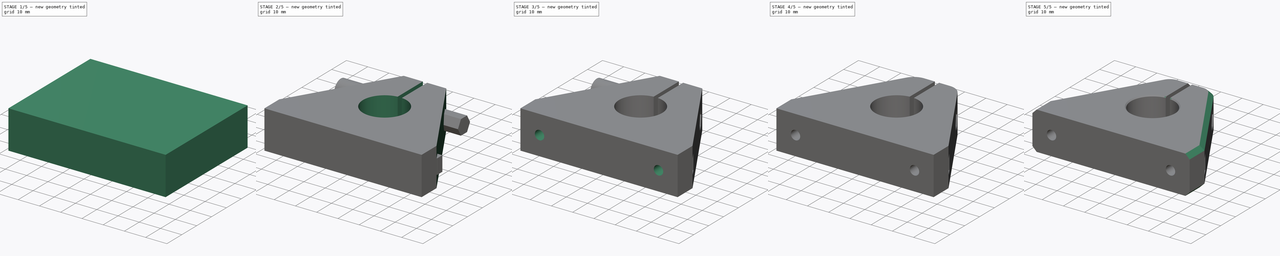
[diagram: build sequence overview — one tinted view per stage of 5, left to right]
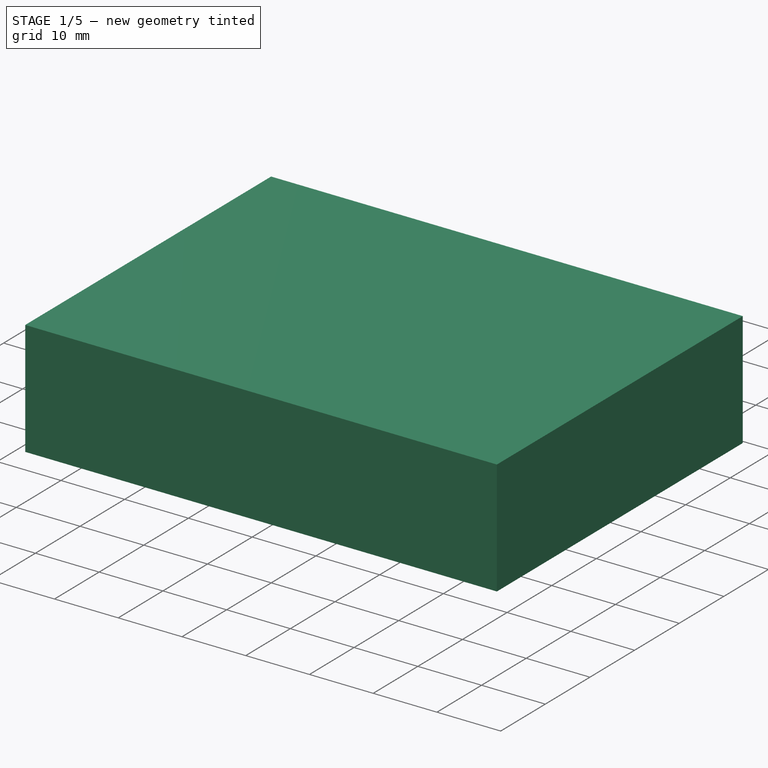
[diagram: stage 1 of 5 — iso view after this stage's code; geometry added in this stage tinted green]
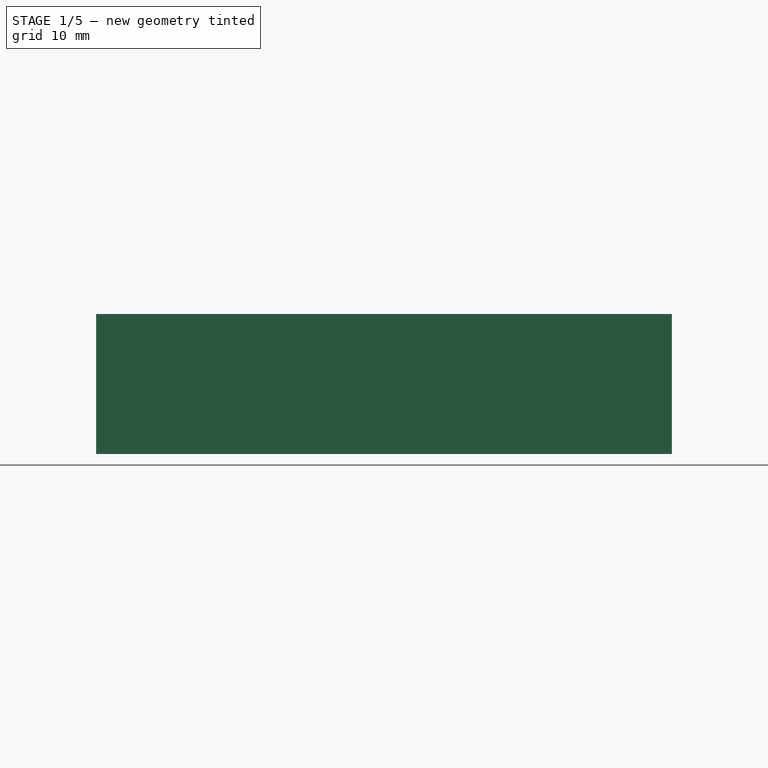
[diagram: stage 1 of 5 — front view after this stage's code; geometry added in this stage tinted green]
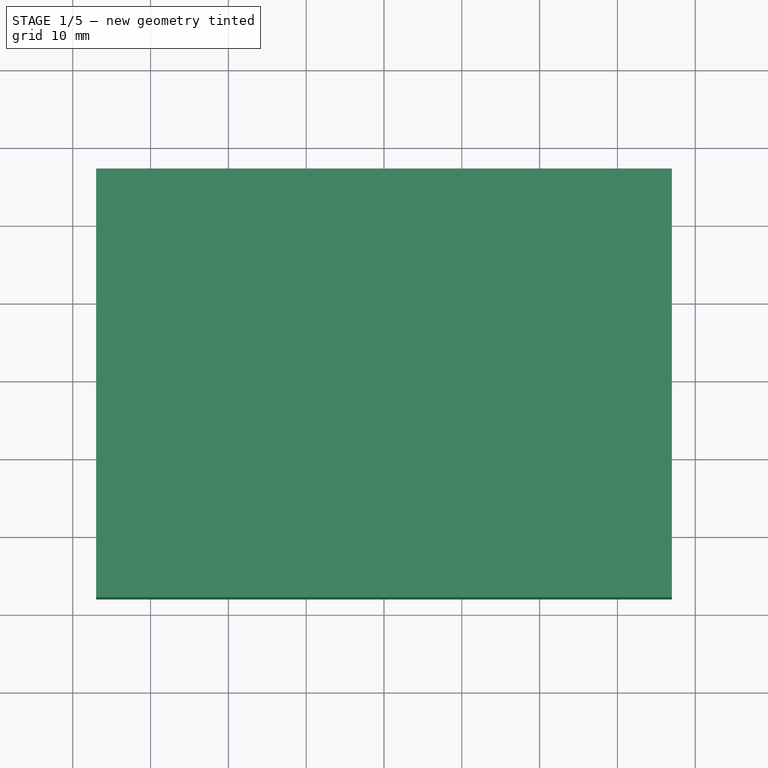
[diagram: stage 1 of 5 — top view after this stage's code; geometry added in this stage tinted green]
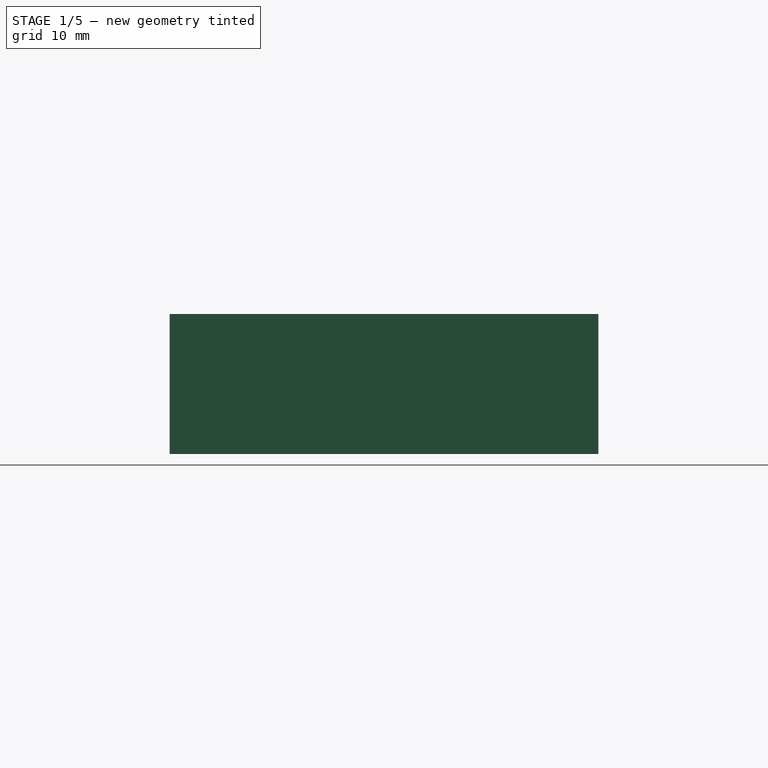
[diagram: stage 1 of 5 — right view after this stage's code; geometry added in this stage tinted green]
FCSTD DOCUMENT  (FreeCAD 0.16R6704 (Git))
Label: Support 
License: All rights reserved
LicenseURL: http://fr.wikipedia.org/wiki/<copyright redacted>
objects: Sketcher::SketchObject×9, PartDesign::Pocket×5, PartDesign::Pad×4, PartDesign::Chamfer×4, Part::Cut×3, PartDesign::Fillet×2
note: 36 computed .brp shape members not serialized (recipe doc carries the construction recipe); baked Part::Feature solids carry a one-line shape summary decoded from their .brp

FEATURE [Sketcher::SketchObject] Sketch
  sketch-geometry (6):
    g0: LineSegment StartX=-37 StartY=-28 StartZ=0 EndX=37 EndY=-28 EndZ=0
    g1: LineSegment StartX=37 StartY=-28 StartZ=0 EndX=37 EndY=27.1 EndZ=0
    g2: LineSegment StartX=37 StartY=27.1 StartZ=0 EndX=-37 EndY=27.1 EndZ=0
    g3: LineSegment StartX=-37 StartY=27.1 StartZ=0 EndX=-37 EndY=-28 EndZ=0
    g4: Circle [constr] CenterX=0 CenterY=0 CenterZ=0 NormalX=0 NormalY=0 NormalZ=1 Radius=10.1
    g5: LineSegment [constr] StartX=0 StartY=10.1 StartZ=0 EndX=0 EndY=27.1 EndZ=0
  constraints (18):
    c: Coincident(g0,g1)
    c: Coincident(g1,g2)
    c: Coincident(g2,g3)
    c: Coincident(g3,g0)
    c: Horizontal(g0)
    c: Horizontal(g2)
    c: Vertical(g1)
    c: Vertical(g3)
    c: Symmetric(g1,g2,g-2)
    c: DistanceX(g1,g2) = -74
    c: Coincident(g4,g-1)
    c: Radius(g4) = 10.1
    c: PointOnObject(g5,g4)
    c: Vertical(g5)
    c: DistanceY(g5) = 17
    c: PointOnObject(g5,g2)
    c: PointOnObject(g5,g-2)
    c: DistanceY(g-1,g0) = -28
FEATURE [PartDesign::Pad] Pad
  Length = 18
  Length2 = 100
  Sketch = -> Sketch
  Type = 0
FEATURE [Sketcher::SketchObject] Sketch005
  Placement = pos=(0,-17.55,0) rot=(1,0,0;1.5708rad)
  sketch-geometry (21):
    g0: LineSegment [constr] StartX=-28 StartY=9 StartZ=0 EndX=28 EndY=9 EndZ=0
    g1: LineSegment StartX=-23.9297 StartY=9 StartZ=0 EndX=-25.9648 EndY=12.525 EndZ=0
    g2: LineSegment StartX=-25.9648 StartY=12.525 StartZ=0 EndX=-30.0352 EndY=12.525 EndZ=0
    g3: LineSegment [constr] StartX=-30.0352 StartY=12.525 StartZ=0 EndX=-32.0703 EndY=9 EndZ=0
    g4: LineSegment [constr] StartX=-32.0703 StartY=9 StartZ=0 EndX=-30.0352 EndY=5.475 EndZ=0
    g5: LineSegment StartX=-30.0352 StartY=5.475 StartZ=0 EndX=-25.9648 EndY=5.475 EndZ=0
    g6: LineSegment StartX=-25.9648 StartY=5.475 StartZ=0 EndX=-23.9297 EndY=9 EndZ=0
    g7: Circle [constr] CenterX=-28 CenterY=9 CenterZ=0 NormalX=0 NormalY=0 NormalZ=1 Radius=4.07032
    g8: LineSegment StartX=23.9297 StartY=9 StartZ=0 EndX=25.9648 EndY=5.475 EndZ=0
    g9: LineSegment StartX=25.9648 StartY=5.475 StartZ=0 EndX=30.0352 EndY=5.475 EndZ=0
    g10: LineSegment [constr] StartX=30.0352 StartY=5.475 StartZ=0 EndX=32.0703 EndY=9 EndZ=0
    g11: LineSegment [constr] StartX=32.0703 StartY=9 StartZ=0 EndX=30.0352 EndY=12.525 EndZ=0
    g12: LineSegment StartX=30.0352 StartY=12.525 StartZ=0 EndX=25.9648 EndY=12.525 EndZ=0
    g13: LineSegment StartX=25.9648 StartY=12.525 StartZ=0 EndX=23.9297 EndY=9 EndZ=0
    g14: Circle [constr] CenterX=28 CenterY=9 CenterZ=0 NormalX=0 NormalY=0 NormalZ=1 Radius=4.07032
    g15: LineSegment StartX=-30.0352 StartY=12.525 StartZ=0 EndX=-37 EndY=12.525 EndZ=0
    g16: LineSegment StartX=-37 StartY=12.525 StartZ=0 EndX=-37 EndY=5.475 EndZ=0
    g17: LineSegment StartX=-37 StartY=5.475 StartZ=0 EndX=-30.0352 EndY=5.475 EndZ=0
    g18: LineSegment StartX=30.0352 StartY=12.525 StartZ=0 EndX=37 EndY=12.525 EndZ=0
    g19: LineSegment StartX=37 StartY=12.525 StartZ=0 EndX=37 EndY=5.475 EndZ=0
    g20: LineSegment StartX=37 StartY=5.475 StartZ=0 EndX=30.0352 EndY=5.475 EndZ=0
  constraints (51):
    c: Symmetric(g0,g0,g-2)
    c: DistanceX(g0) = 56
    c: DistanceY(g-1,g0) = 9
    c: Coincident(g1,g2)
    c: Coincident(g2,g3)
    c: Coincident(g3,g4)
    c: Coincident(g4,g5)
    c: Coincident(g5,g6)
    c: Coincident(g6,g1)
    c: Equal(g1, g2-g6) x5
    c: PointOnObject(g1,g7)
    c: PointOnObject(g2,g7)
    c: PointOnObject(g3,g7)
    c: PointOnObject(g4,g7)
    c: PointOnObject(g5,g7)
    c: PointOnObject(g6,g7)
    c: Horizontal(g5)
    c: Coincident(g8,g9)
    c: Coincident(g9,g10)
    c: Coincident(g10,g11)
    c: Coincident(g11,g12)
    c: Coincident(g12,g13)
    c: Coincident(g13,g8)
    c: Equal(g8, g9-g13) x5
    c: PointOnObject(g8,g14)
    c: PointOnObject(g9,g14)
    c: PointOnObject(g10,g14)
    c: PointOnObject(g11,g14)
    c: PointOnObject(g12,g14)
    c: PointOnObject(g13,g14)
    c: Horizontal(g12)
    c: Coincident(g0,g7)
    c: Coincident(g0,g14)
    c: Equal(g7,g14)
    c: Distance(g5,g1) = 7.05
    c: Horizontal(g15)
    c: Coincident(g15,g16)
    c: Vertical(g16)
    c: Coincident(g16,g17)
    c: Horizontal(g17)
    c: Coincident(g15,g2)
    c: Coincident(g17,g4)
    c: Coincident(g18,g19)
    c: Vertical(g19)
    c: Coincident(g19,g20)
    c: Coincident(g18,g11)
    c: Coincident(g20,g9)
    c: Parallel(g18,g20)
    c: Parallel(g20,g-1)
    c: Symmetric(g16,g19,g-2)
    c: DistanceX(g16,g19) = 74
FEATURE [PartDesign::Pad] Pad001
  Length = 3.5
  Length2 = 100
  Placement = pos=(0,-17.55,0) rot=(1,0,0;1.5708rad)
  Reversed = true
  Sketch = -> Sketch005
  Type = 0
FEATURE [Sketcher::SketchObject] Sketch007
  Placement = pos=(4,0,0) rot=(0.57735,0.57735,0.57735;2.0944rad)
  sketch-geometry (7):
    g0: LineSegment StartX=21.0852 StartY=12.525 StartZ=0 EndX=17.0148 EndY=12.525 EndZ=0
    g1: LineSegment StartX=17.0148 StartY=12.525 StartZ=0 EndX=14.9797 EndY=9 EndZ=0
    g2: LineSegment StartX=14.9797 StartY=9 StartZ=0 EndX=17.0148 EndY=5.475 EndZ=0
    g3: LineSegment StartX=17.0148 StartY=5.475 StartZ=0 EndX=21.0852 EndY=5.475 EndZ=0
    g4: LineSegment StartX=21.0852 StartY=5.475 StartZ=0 EndX=23.1203 EndY=9 EndZ=0
    g5: LineSegment StartX=23.1203 StartY=9 StartZ=0 EndX=21.0852 EndY=12.525 EndZ=0
    g6: Circle [constr] CenterX=19.05 CenterY=9 CenterZ=0 NormalX=0 NormalY=0 NormalZ=1 Radius=4.07032
  constraints (17):
    c: Coincident(g0,g1)
    c: Coincident(g1,g2)
    c: Coincident(g2,g3)
    c: Coincident(g3,g4)
    c: Coincident(g4,g5)
    c: Coincident(g5,g0)
    c: Equal(g0, g1-g5) x5
    c: PointOnObject(g0,g6)
    c: PointOnObject(g1,g6)
    c: PointOnObject(g2,g6)
    c: PointOnObject(g3,g6)
    c: PointOnObject(g4,g6)
    c: PointOnObject(g5,g6)
    c: DistanceY(g-1,g6) = 9
    c: Distance(g3,g0) = 7.05
    c: Horizontal(g3)
    c: DistanceX(g-1,g6) = 19.05
FEATURE [PartDesign::Pad] Pad002
  Length = 20
  Length2 = 100
  Placement = pos=(4,0,0) rot=(0.57735,0.57735,0.57735;2.0944rad)
  Sketch = -> Sketch007
  Type = 0
FEATURE [Sketcher::SketchObject] Sketch009
  Placement = pos=(-4,0,0) rot=(0.57735,0.57735,0.57735;2.0944rad)
  sketch-geometry (1):
    g0: Circle CenterX=19.05 CenterY=9 CenterZ=0 NormalX=0 NormalY=0 NormalZ=1 Radius=4.5
  constraints (3):
    c: DistanceX(g-1,g0) = 19.05
    c: DistanceY(g-1,g0) = 9
    c: Radius(g0) = 4.5
FEATURE [PartDesign::Pad] Pad003
  Length = 30
  Length2 = 100
  Placement = pos=(-4,0,0) rot=(0.57735,0.57735,0.57735;2.0944rad)
  Reversed = true
  Sketch = -> Sketch009
  Type = 0
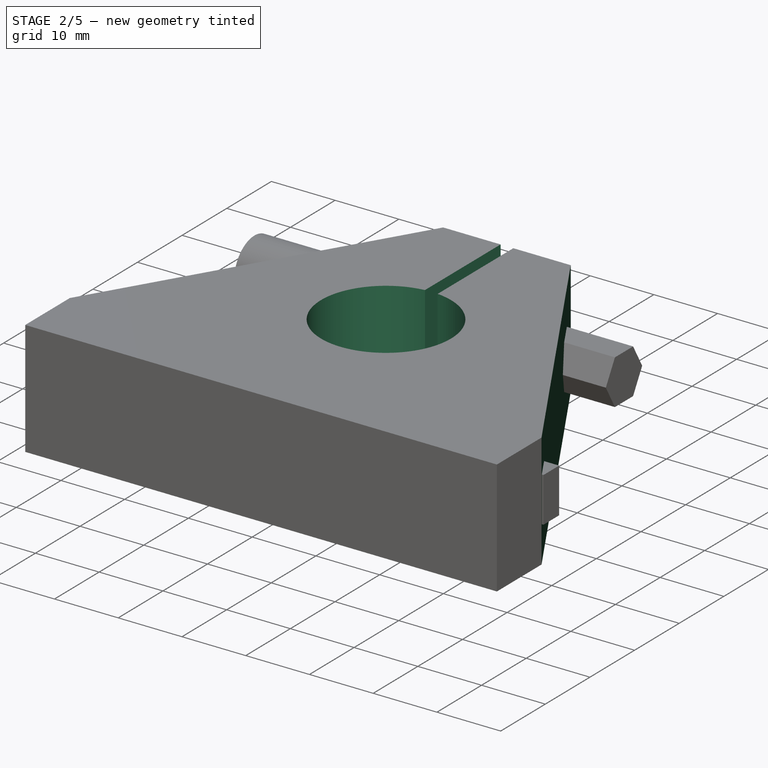
[diagram: stage 2 of 5 — iso view after this stage's code; geometry added in this stage tinted green]
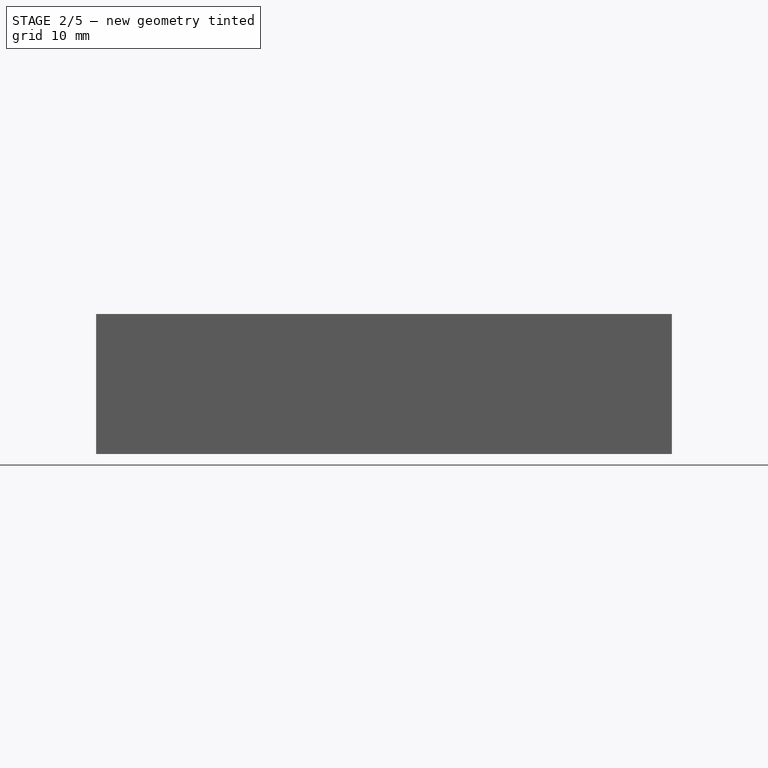
[diagram: stage 2 of 5 — front view after this stage's code; geometry added in this stage tinted green]
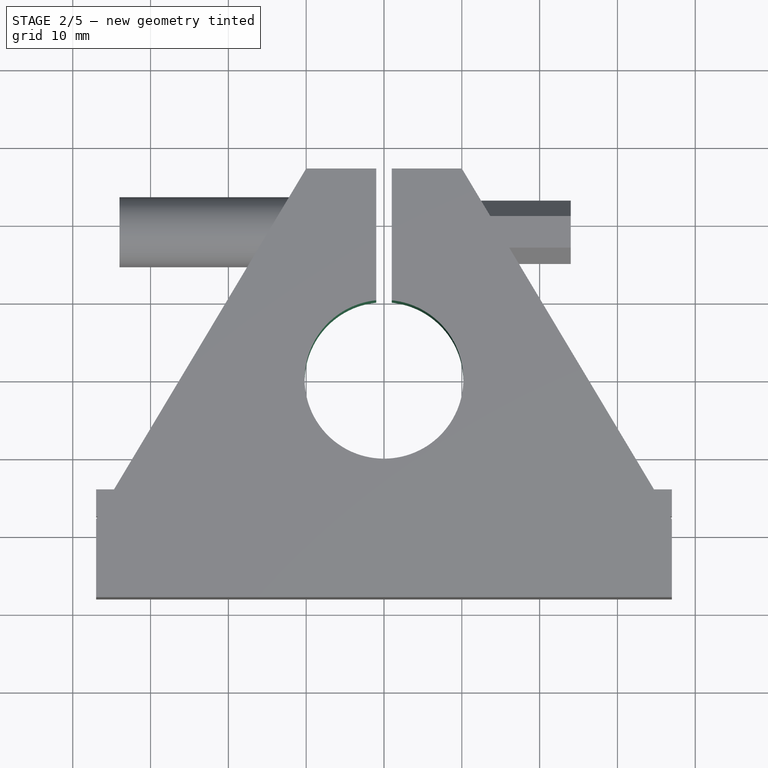
[diagram: stage 2 of 5 — top view after this stage's code; geometry added in this stage tinted green]
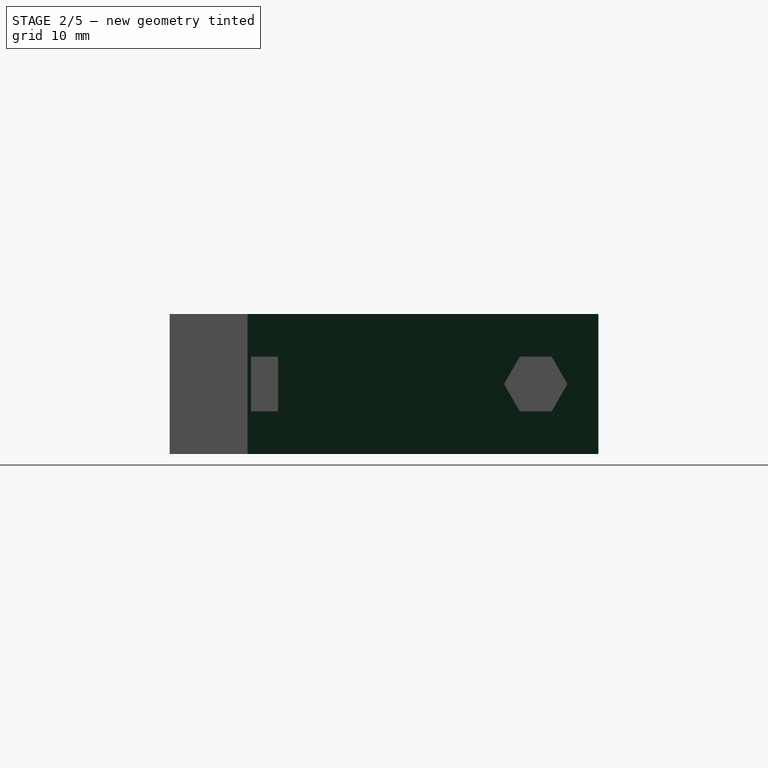
[diagram: stage 2 of 5 — right view after this stage's code; geometry added in this stage tinted green]
FEATURE [Sketcher::SketchObject] Sketch001
  ExternalGeometry = -> [Pad]
  Placement = pos=(0,0,18) rot=(0,0,1;0rad)
  Support = -> Pad [Face6]
  sketch-geometry (1):
    g0: Circle CenterX=0 CenterY=0 CenterZ=0 NormalX=0 NormalY=0 NormalZ=1 Radius=10.2
  constraints (3):
    c: PointOnObject(g0,g-2)
    c: Radius(g0) = 10.2
    c: DistanceY(g0,g-3) = -28
FEATURE [PartDesign::Pocket] Pocket
  Length = 5
  Sketch = -> Sketch001
  Type = 1
FEATURE [Sketcher::SketchObject] Sketch003
  ExternalGeometry = -> [Pocket]
  Placement = pos=(0,0,18) rot=(0,0,1;0rad)
  Support = -> Pocket [Face5]
  sketch-geometry (6):
    g0: LineSegment StartX=-37 StartY=-18 StartZ=0 EndX=-10 EndY=27.1 EndZ=0
    g1: LineSegment StartX=-10 StartY=27.1 StartZ=0 EndX=-37 EndY=27.1 EndZ=0
    g2: LineSegment StartX=-37 StartY=27.1 StartZ=0 EndX=-37 EndY=-18 EndZ=0
    g3: LineSegment StartX=37 StartY=-18 StartZ=0 EndX=10 EndY=27.1 EndZ=0
    g4: LineSegment StartX=10 StartY=27.1 StartZ=0 EndX=37 EndY=27.1 EndZ=0
    g5: LineSegment StartX=37 StartY=27.1 StartZ=0 EndX=37 EndY=-18 EndZ=0
  constraints (16):
    c: Coincident(g0,g1)
    c: Horizontal(g1)
    c: Coincident(g1,g2)
    c: Coincident(g2,g0)
    c: Coincident(g-4,g1)
    c: Vertical(g2)
    c: DistanceY(g-3,g0) = 10
    c: DistanceX(g-1,g0) = -10
    c: Coincident(g3,g4)
    c: Horizontal(g4)
    c: Coincident(g4,g5)
    c: Coincident(g5,g3)
    c: Vertical(g5)
    c: Coincident(g4,g-4)
    c: DistanceY(g3,g-3) = -10
    c: DistanceX(g-1,g3) = 10
FEATURE [PartDesign::Pocket] Pocket001
  Length = 5
  Sketch = -> Sketch003
  Type = 1
FEATURE [Sketcher::SketchObject] Sketch004
  Placement = pos=(0,0,18) rot=(0,0,1;0rad)
  Support = -> Pocket001 [Face5]
  sketch-geometry (4):
    g0: LineSegment StartX=1 StartY=5.14291 StartZ=0 EndX=-1 EndY=5.14291 EndZ=0
    g1: LineSegment StartX=-1 StartY=5.14291 StartZ=0 EndX=-1 EndY=29.4675 EndZ=0
    g2: LineSegment StartX=-1 StartY=29.4675 StartZ=0 EndX=1 EndY=29.4675 EndZ=0
    g3: LineSegment StartX=1 StartY=29.4675 StartZ=0 EndX=1 EndY=5.14291 EndZ=0
  constraints (10):
    c: Coincident(g0,g1)
    c: Coincident(g1,g2)
    c: Coincident(g2,g3)
    c: Coincident(g3,g0)
    c: Horizontal(g0)
    c: Horizontal(g2)
    c: Vertical(g1)
    c: Vertical(g3)
    c: Symmetric(g2,g1,g-2)
    c: DistanceX(g2,g1) = -2
FEATURE [PartDesign::Pocket] Pocket002
  Length = 5
  Sketch = -> Sketch004
  Type = 1
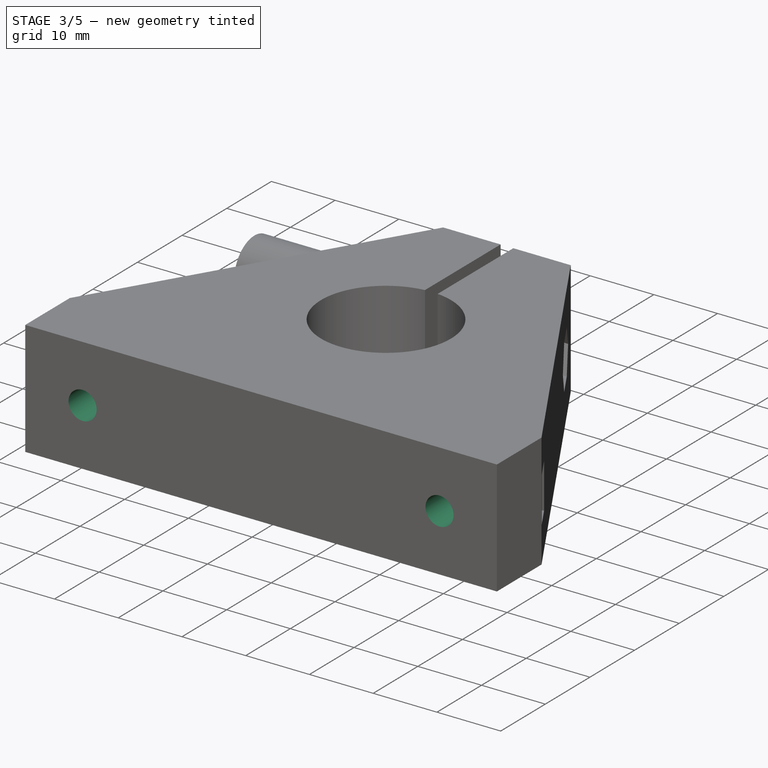
[diagram: stage 3 of 5 — iso view after this stage's code; geometry added in this stage tinted green]
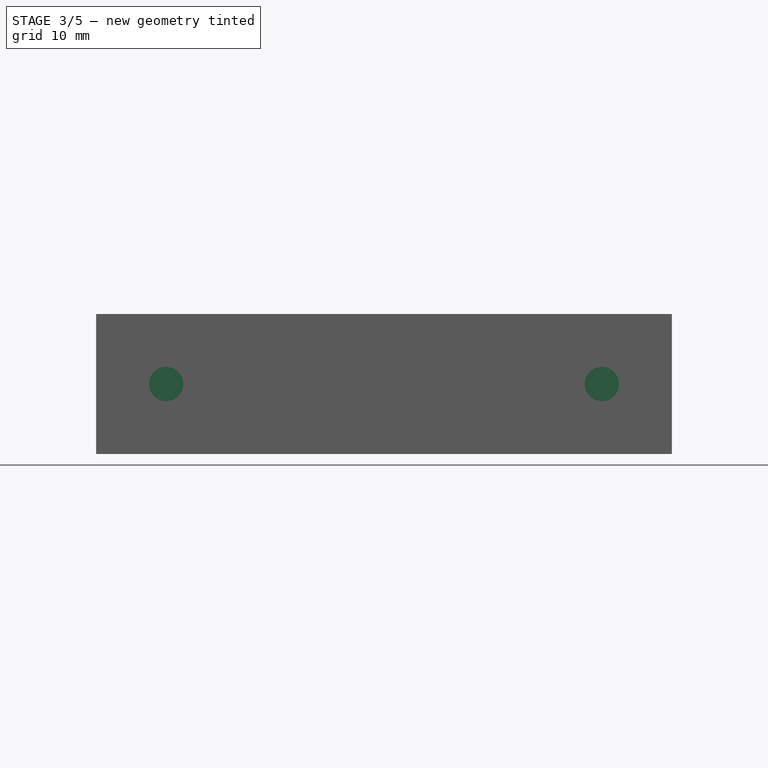
[diagram: stage 3 of 5 — front view after this stage's code; geometry added in this stage tinted green]
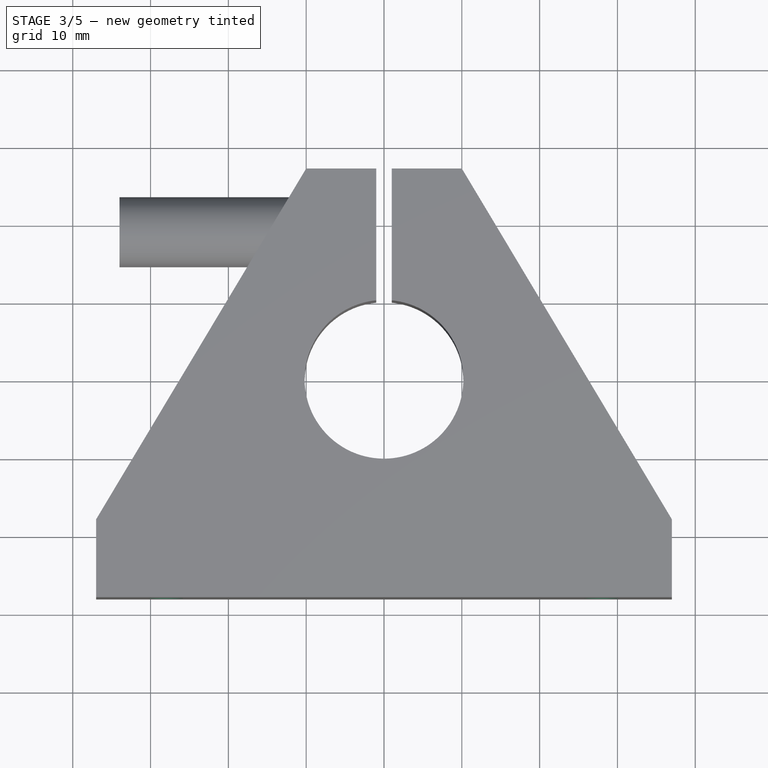
[diagram: stage 3 of 5 — top view after this stage's code; geometry added in this stage tinted green]
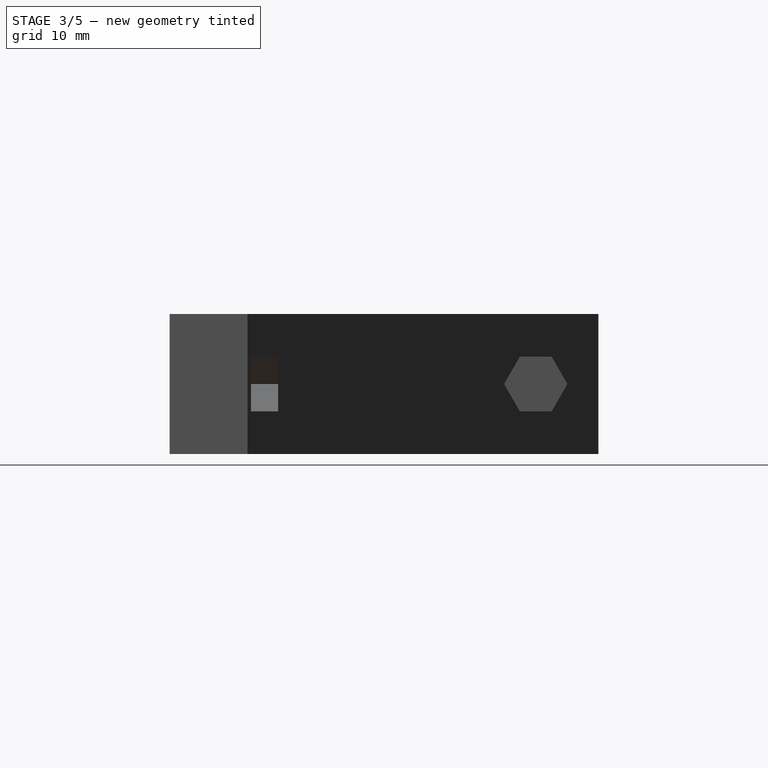
[diagram: stage 3 of 5 — right view after this stage's code; geometry added in this stage tinted green]
FEATURE [Part::Cut] Cut
  Base = -> Pocket002
  Tool = -> Pad001
FEATURE [Sketcher::SketchObject] Sketch006
  Placement = pos=(0,-28,0) rot=(1,0,0;1.5708rad)
  Support = -> Cut [Face1]
  sketch-geometry (3):
    g0: LineSegment [constr] StartX=-28 StartY=9 StartZ=0 EndX=28 EndY=9 EndZ=0
    g1: Circle CenterX=-28 CenterY=9 CenterZ=0 NormalX=0 NormalY=0 NormalZ=1 Radius=2.2
    g2: Circle CenterX=28 CenterY=9 CenterZ=0 NormalX=0 NormalY=0 NormalZ=1 Radius=2.2
  constraints (8):
    c: Horizontal(g0)
    c: Symmetric(g0,g0,g-2)
    c: DistanceY(g-1,g0) = 9
    c: DistanceX(g0,g0) = 56
    c: Coincident(g2,g0)
    c: Coincident(g1,g0)
    c: Equal(g1,g2)
    c: Radius(g2) = 2.2
FEATURE [PartDesign::Pocket] Pocket003
  Length = 18
  Sketch = -> Sketch006
  Type = 0
FEATURE [Part::Cut] Cut001
  Base = -> Pocket003
  Tool = -> Pad002
FEATURE [Sketcher::SketchObject] Sketch008
  ExternalGeometry = -> [Cut001]
  Placement = pos=(4,0,0) rot=(0.57735,0.57735,0.57735;2.0944rad)
  Support = -> Cut001 [Face40]
  sketch-geometry (3):
    g0: LineSegment [constr] StartX=17.0148 StartY=12.525 StartZ=0 EndX=21.0852 EndY=5.475 EndZ=0
    g1: LineSegment [constr] StartX=21.0852 StartY=12.525 StartZ=0 EndX=17.0148 EndY=5.475 EndZ=0
    g2: Circle CenterX=19.05 CenterY=9 CenterZ=0 NormalX=0 NormalY=0 NormalZ=1 Radius=2.2
  constraints (7):
    c: PointOnObject(g2,g0)
    c: PointOnObject(g2,g1)
    c: Radius(g2) = 2.2
    c: Coincident(g0,g-3)
    c: Coincident(g1,g-3)
    c: Coincident(g1,g-4)
    c: Coincident(g0,g-4)
FEATURE [PartDesign::Pocket] Pocket004
  Length = 5
  Sketch = -> Sketch008
  Type = 1
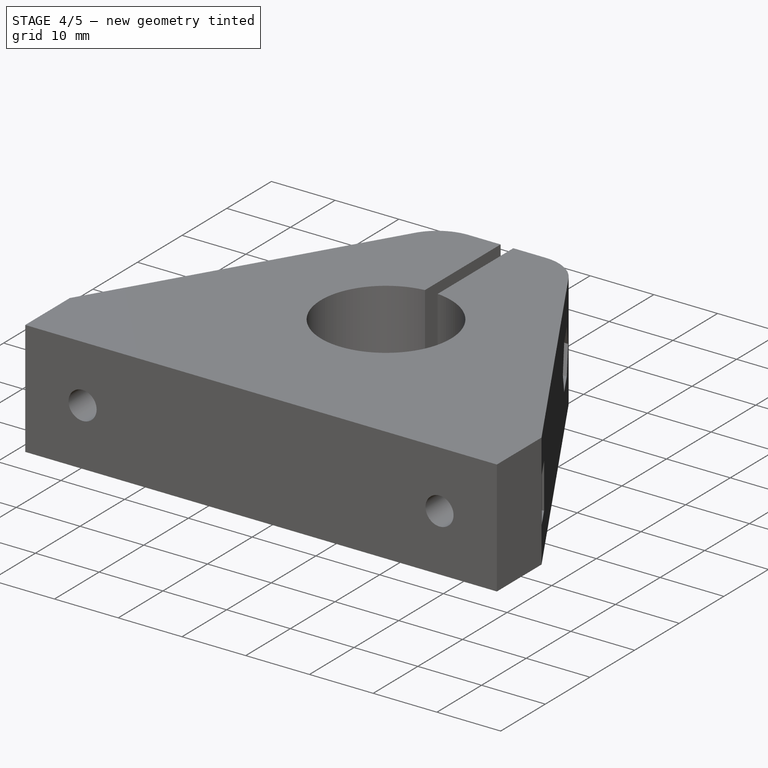
[diagram: stage 4 of 5 — iso view after this stage's code; geometry added in this stage tinted green]
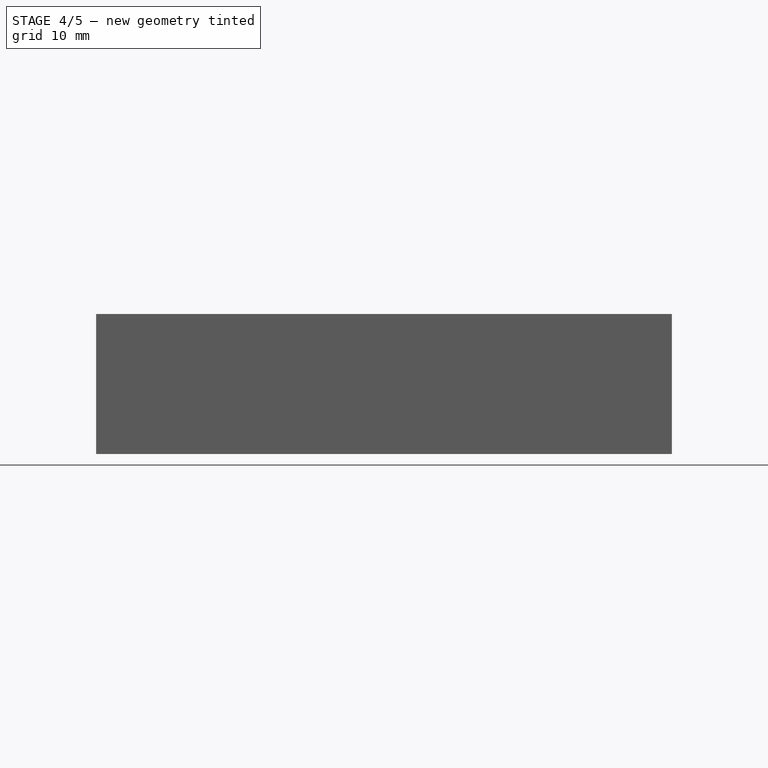
[diagram: stage 4 of 5 — front view after this stage's code; geometry added in this stage tinted green]
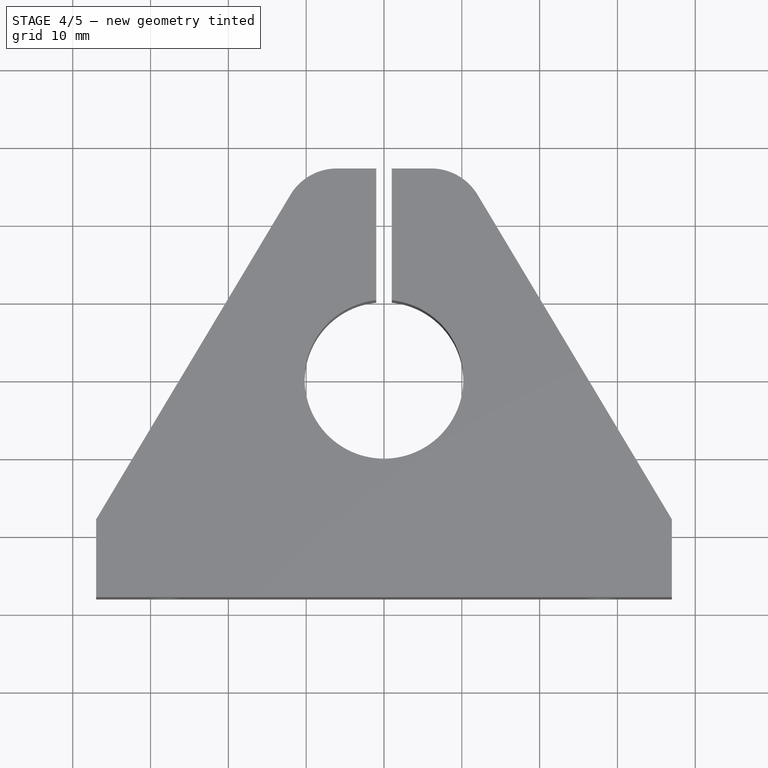
[diagram: stage 4 of 5 — top view after this stage's code; geometry added in this stage tinted green]
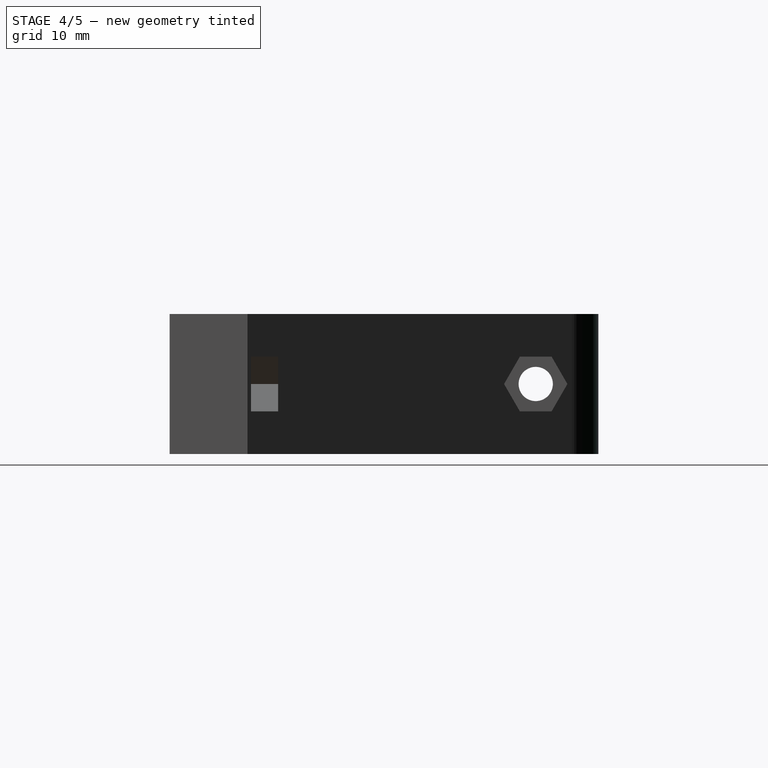
[diagram: stage 4 of 5 — right view after this stage's code; geometry added in this stage tinted green]
FEATURE [Part::Cut] Cut002
  Base = -> Pocket004
  Tool = -> Pad003
FEATURE [PartDesign::Fillet] Fillet
  Base = -> Cut002 [Edge39]
  Radius = 7
FEATURE [PartDesign::Fillet] Fillet001
  Base = -> Fillet [Edge44]
  Radius = 7
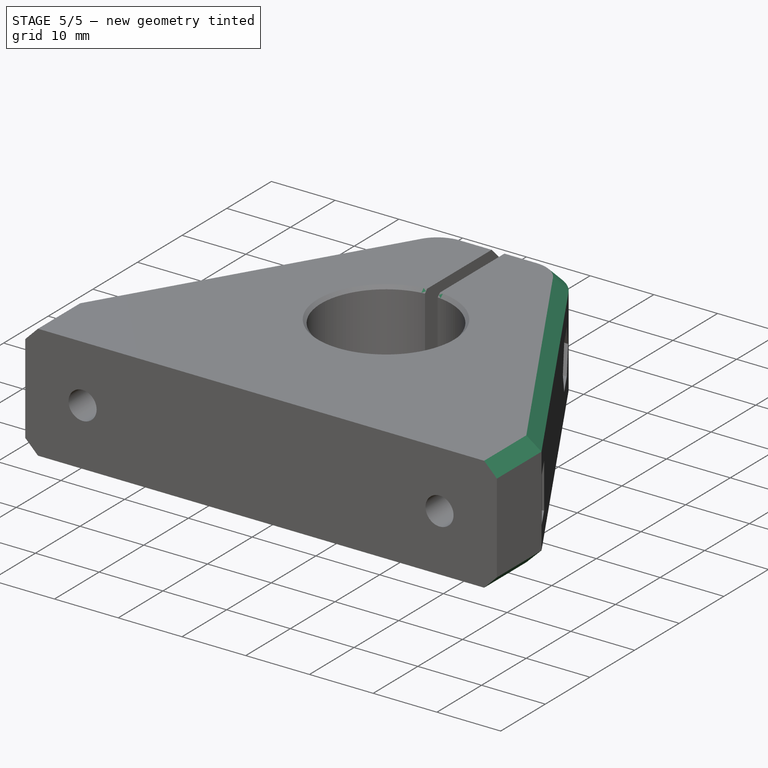
[diagram: stage 5 of 5 — iso view after this stage's code; geometry added in this stage tinted green]
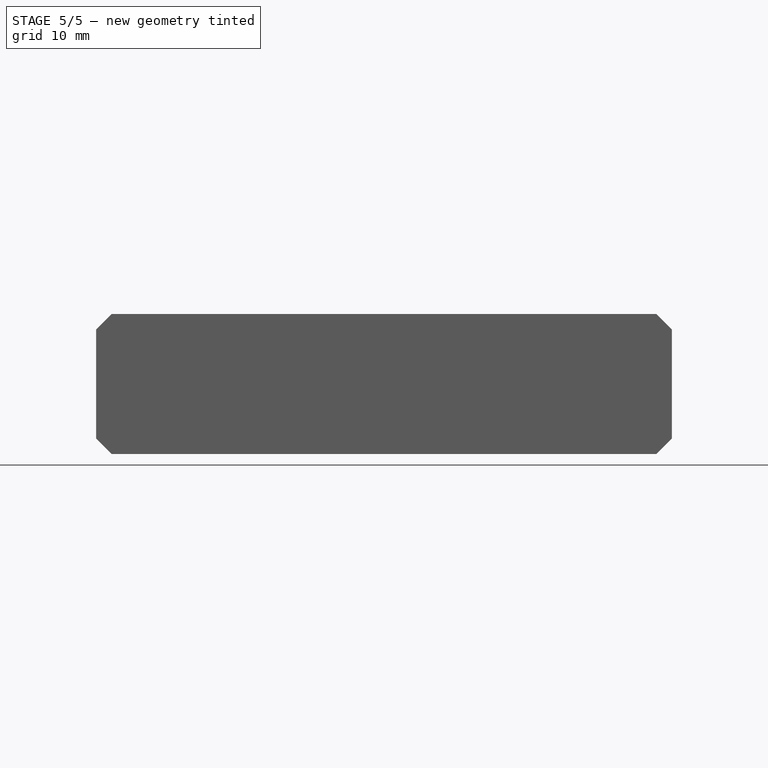
[diagram: stage 5 of 5 — front view after this stage's code; geometry added in this stage tinted green]
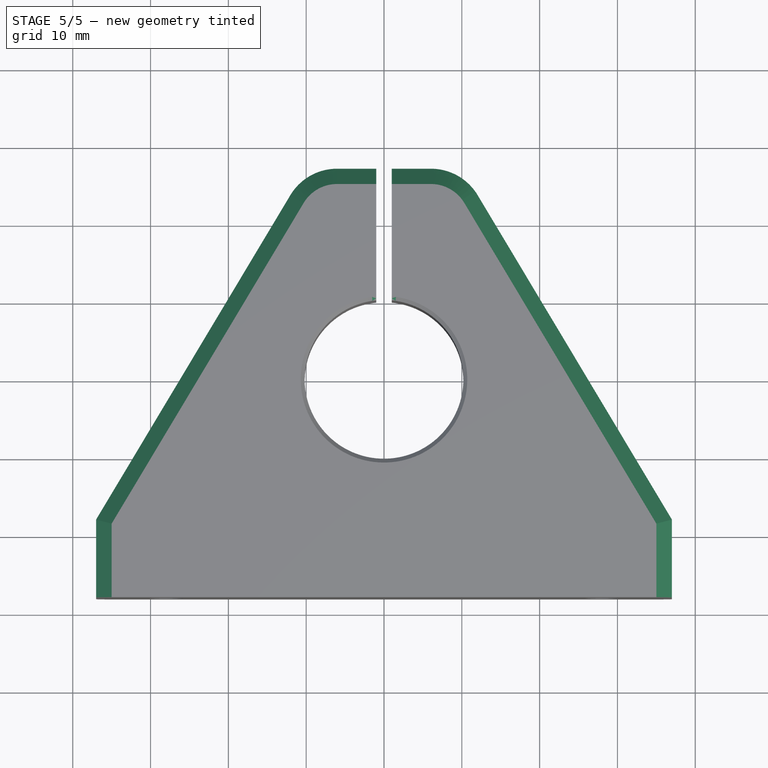
[diagram: stage 5 of 5 — top view after this stage's code; geometry added in this stage tinted green]
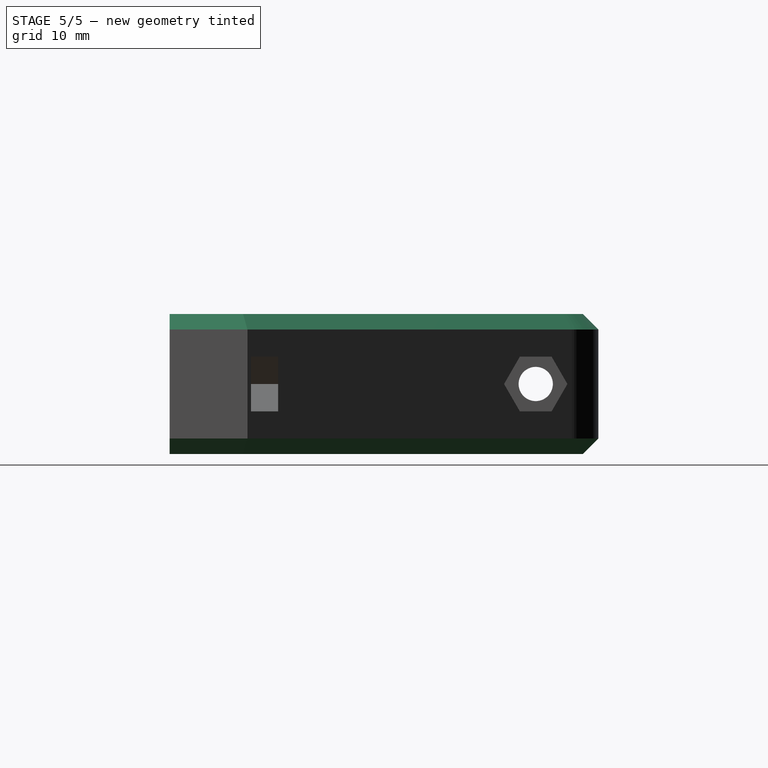
[diagram: stage 5 of 5 — right view after this stage's code; geometry added in this stage tinted green]
FEATURE [PartDesign::Chamfer] Chamfer
  Base = -> Fillet001 [Edge53,Edge25,Edge14,Edge22,Edge27,Edge58,Edge39,Edge36]
  Size = 2
FEATURE [PartDesign::Chamfer] Chamfer001
  Base = -> Chamfer [Edge20,Edge22,Edge24,Edge26,Edge17,Edge11,Edge3,Edge16]
  Size = 2
FEATURE [PartDesign::Chamfer] Chamfer002
  Base = -> Chamfer001 [Edge56,Edge57]
  Size = 0.5
FEATURE [PartDesign::Chamfer] Chamfer003
  Base = -> Chamfer002 [Edge55,Edge66]
  Size = 0.5
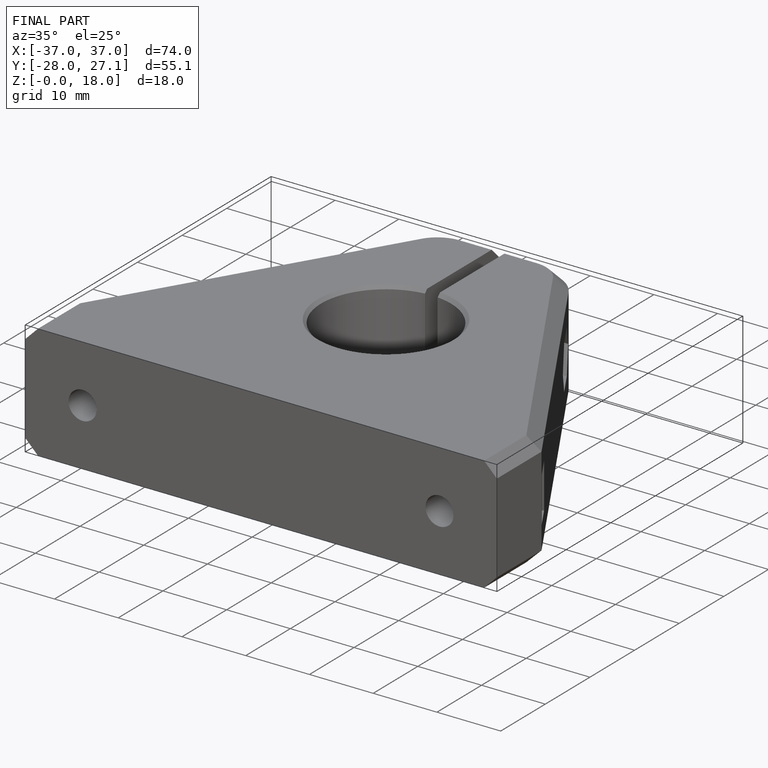
[diagram: finished part — iso view with bounding-box wireframe]
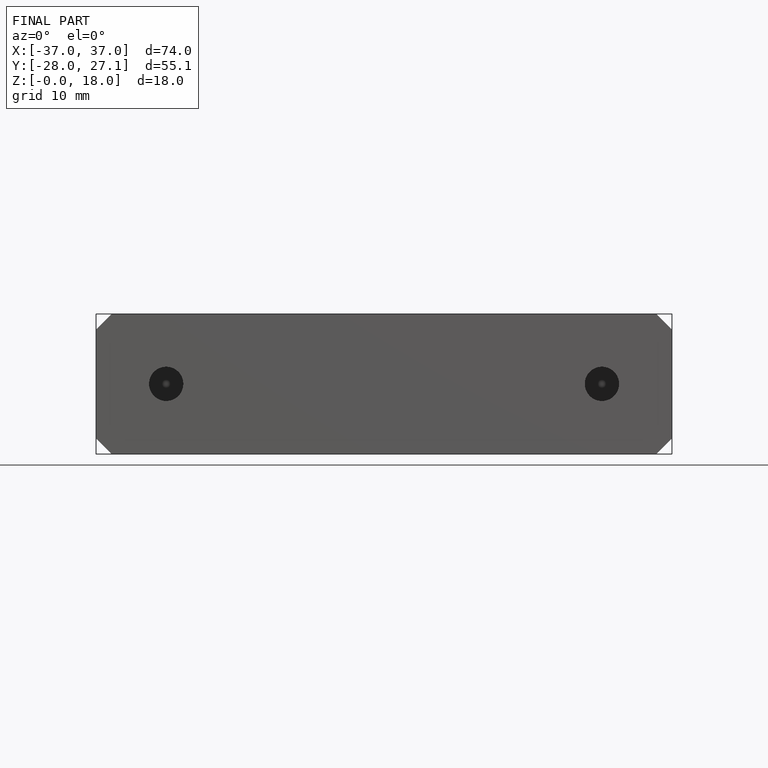
[diagram: finished part — front view with bounding-box wireframe]
